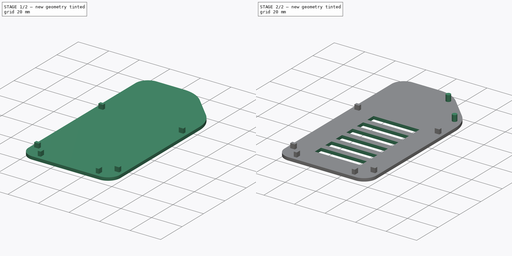
[diagram: build sequence overview — one tinted view per stage of 2, left to right]
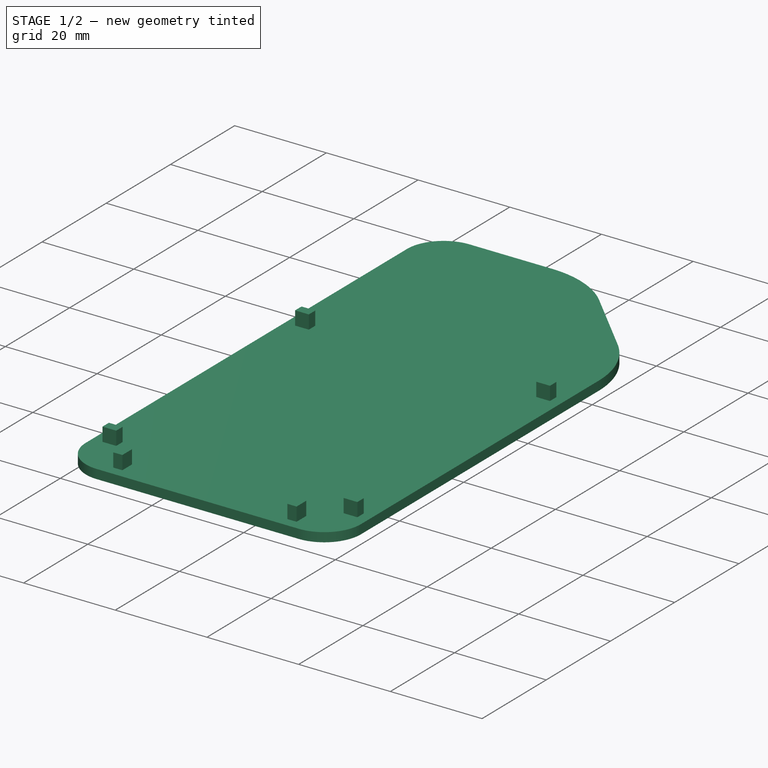
[diagram: stage 1 of 2 — iso view after this stage's code; geometry added in this stage tinted green]
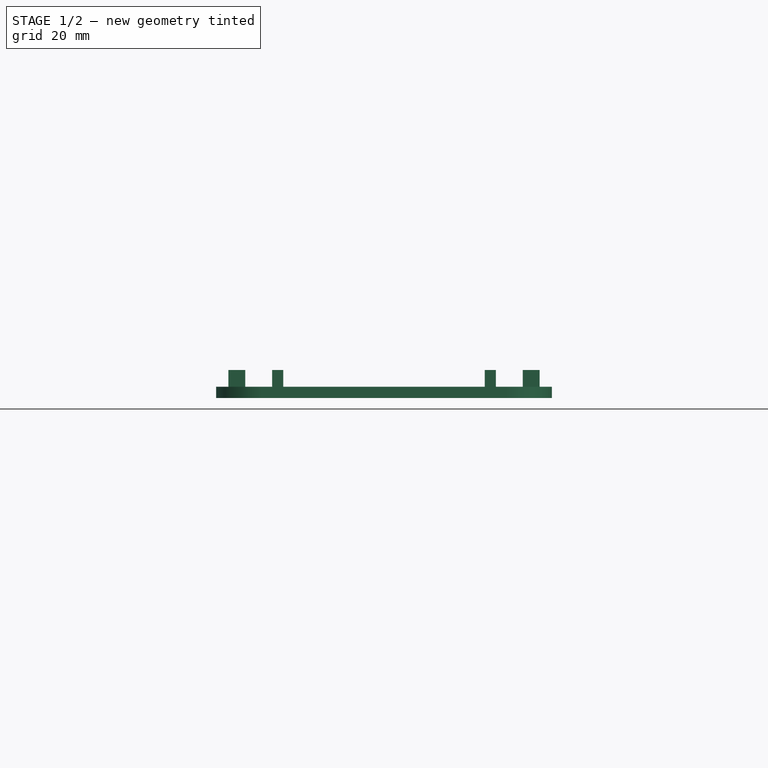
[diagram: stage 1 of 2 — front view after this stage's code; geometry added in this stage tinted green]
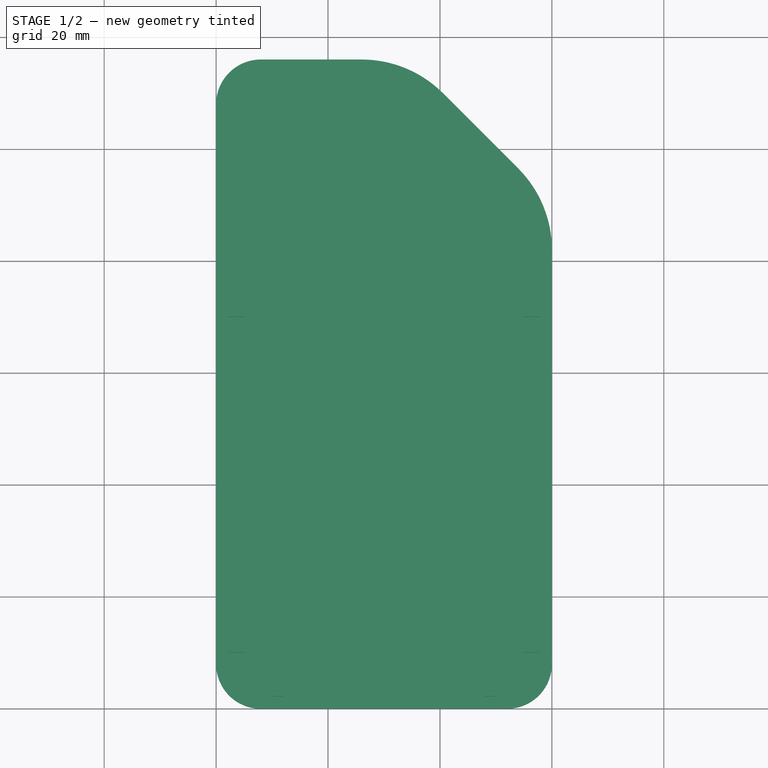
[diagram: stage 1 of 2 — top view after this stage's code; geometry added in this stage tinted green]
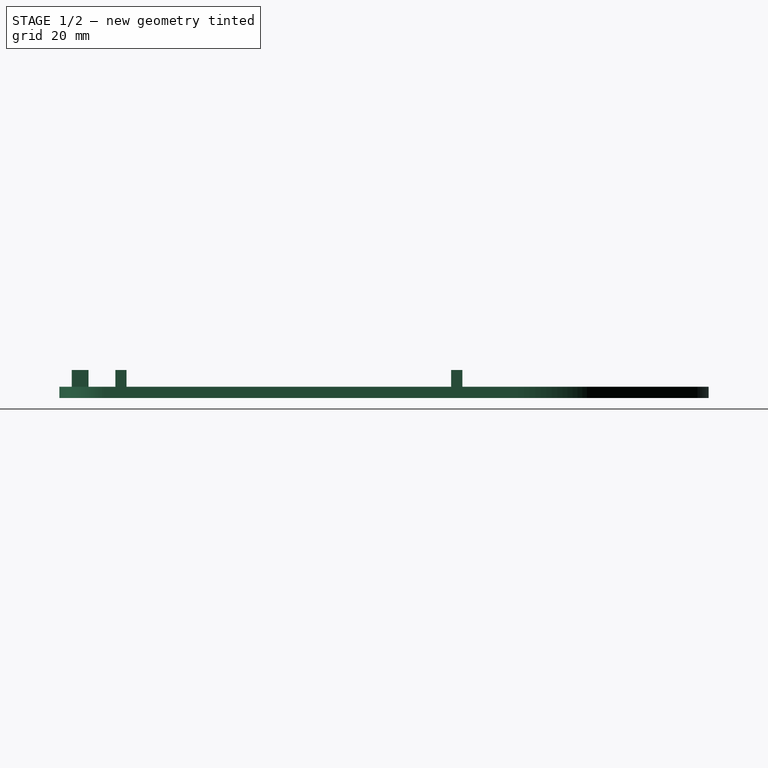
[diagram: stage 1 of 2 — right view after this stage's code; geometry added in this stage tinted green]
FCSTD DOCUMENT
Label: Lid
objects: Sketcher::SketchObject×5, PartDesign::Pad×3, PartDesign::Pocket×1
note: 12 computed .brp shape members not serialized (recipe doc carries the construction recipe); baked Part::Feature solids carry a one-line shape summary decoded from their .brp

FEATURE [Sketcher::SketchObject] Sketch
  sketch-geometry (10):
    g0: LineSegment StartX=60 StartY=8 StartZ=0 EndX=60 EndY=82 EndZ=0
    g1: LineSegment StartX=0 StartY=108 StartZ=0 EndX=0 EndY=8 EndZ=0
    g2: LineSegment StartX=8 StartY=116 StartZ=0 EndX=26 EndY=116 EndZ=0
    g3: LineSegment StartX=8 StartY=0 StartZ=0 EndX=52 EndY=0 EndZ=0
    g4: ArcOfCircle CenterX=8 CenterY=108 CenterZ=0 NormalX=0 NormalY=0 NormalZ=1 Radius=8 StartAngle=1.5708 EndAngle=3.14159
    g5: ArcOfCircle CenterX=52 CenterY=8 CenterZ=0 NormalX=0 NormalY=0 NormalZ=1 Radius=8 StartAngle=4.71239 EndAngle=6.28319
    g6: ArcOfCircle CenterX=8 CenterY=8 CenterZ=0 NormalX=0 NormalY=0 NormalZ=1 Radius=8 StartAngle=3.14159 EndAngle=4.71239
    g7: LineSegment StartX=40.5416 StartY=109.977 StartZ=0 EndX=53.9767 EndY=96.5416 EndZ=0
    g8: ArcOfCircle CenterX=26 CenterY=95.435 CenterZ=0 NormalX=0 NormalY=0 NormalZ=1 Radius=20.565 StartAngle=0.785399 EndAngle=1.5708
    g9: ArcOfCircle CenterX=39.435 CenterY=82 CenterZ=0 NormalX=0 NormalY=0 NormalZ=1 Radius=20.565 StartAngle=6.28319 EndAngle=7.06858
  constraints (34):
    c: Vertical(g0)
    c: Vertical(g1)
    c: Horizontal(g2)
    c: Horizontal(g3)
    c: Coincident(g6,g1)
    c: Coincident(g3,g6)
    c: Coincident(g3,g5)
    c: Coincident(g5,g0)
    c: Coincident(g2,g4)
    c: Coincident(g1,g4)
    c: Radius(g4) = 8
    c: Equal(g5,g6)
    c: Tangent(g4,g2)
    c: Tangent(g5,g3)
    c: DistanceX(g1,g0) = 60
    c: DistanceX(g1) = 0
    c: Tangent(g1,g4)
    c: Tangent(g3,g6)
    c: Tangent(g6,g1)
    c: DistanceY(g3) = 0
    c: Angle(g7) = -0.785398
    c: Coincident(g7,g8)
    c: Coincident(g8,g2)
    c: Tangent(g8,g2)
    c: Tangent(g7,g8)
    c: Coincident(g9,g7)
    c: Tangent(g9,g7)
    c: Coincident(g9,g0)
    c: Distance(g7) = 19
    c: Distance(g2) = 18
    c: Equal(g9,g8)
    c: Equal(g4,g6)
    c: Tangent(g0,g9)
    c: Tangent(g5,g0)
FEATURE [PartDesign::Pad] Pad
  Length = 2
  MirroredExtent = false
  Sketch = -> Sketch
FEATURE [Sketcher::SketchObject] Sketch001
  Placement = pos=(0,0,2) rot=(0,0,1;0rad)
  Support = -> Pad [Face12]
  sketch-geometry (10):
    g0: ArcOfCircle CenterX=8 CenterY=108 CenterZ=0 NormalX=0 NormalY=0 NormalZ=1 Radius=6 StartAngle=1.57079 EndAngle=3.14159
    g1: ArcOfCircle CenterX=26 CenterY=95.435 CenterZ=0 NormalX=0 NormalY=0 NormalZ=1 Radius=18.565 StartAngle=0.785398 EndAngle=1.5708
    g2: ArcOfCircle CenterX=39.435 CenterY=82 CenterZ=0 NormalX=0 NormalY=0 NormalZ=1 Radius=18.565 StartAngle=6.28319 EndAngle=7.06858
    g3: ArcOfCircle CenterX=52 CenterY=8 CenterZ=0 NormalX=0 NormalY=0 NormalZ=1 Radius=6 StartAngle=4.71239 EndAngle=6.28319
    g4: ArcOfCircle CenterX=8 CenterY=8 CenterZ=0 NormalX=0 NormalY=0 NormalZ=1 Radius=6 StartAngle=3.14159 EndAngle=4.71239
    g5: LineSegment StartX=8.00001 StartY=114 StartZ=0 EndX=26 EndY=114 EndZ=0
    g6: LineSegment StartX=2 StartY=108 StartZ=0 EndX=2 EndY=8 EndZ=0
    g7: LineSegment StartX=39.1274 StartY=108.562 StartZ=0 EndX=52.5624 EndY=95.1274 EndZ=0
    g8: LineSegment StartX=58 StartY=82 StartZ=0 EndX=58 EndY=8 EndZ=0
    g9: LineSegment StartX=8 StartY=2 StartZ=0 EndX=52 EndY=2 EndZ=0
  constraints (35):
    c: Horizontal(g5)
    c: Tangent(g5,g1)
    c: Coincident(g1,g5)
    c: Coincident(g0,g5)
    c: Vertical(g6)
    c: Tangent(g6,g0)
    c: Coincident(g4,g6)
    c: Coincident(g0,g6)
    c: Coincident(g2,g7)
    c: Coincident(g1,g7)
    c: Vertical(g8)
    c: Coincident(g3,g8)
    c: Coincident(g2,g8)
    c: Horizontal(g9)
    c: Coincident(g9,g3)
    c: Coincident(g9,g4)
    c: Radius(g0) = 6
    c: Equal(g0,g4)
    c: Tangent(g7,g1)
    c: Tangent(g2,g8)
    c: DistanceY(g2,g3) = -80
    c: Equal(g3,g4)
    c: Distance(g7) = 19
    c: Distance(g5) = 18
    c: DistanceX(g4) = 8
    c: DistanceY(g4) = 8
    c: Tangent(g2,g7)
    c: Tangent(g4,g6)
    c: Tangent(g4,g9)
    c: Tangent(g5,g0)
    c: Tangent(g3,g8)
    c: Tangent(g3,g9)
    c: DistanceX(g4,g3) = 44
    c: DistanceY(g6) = -100
    c: Radius(g2) = 18.565
FEATURE [Sketcher::SketchObject] Sketch002
  Placement = pos=(0,0,2) rot=(0,0,1;0rad)
  Support = -> Pad [Face12]
  sketch-geometry (24):
    g0: LineSegment StartX=10 StartY=5.2 StartZ=0 EndX=12 EndY=5.2 EndZ=0
    g1: LineSegment StartX=12 StartY=5.2 StartZ=0 EndX=12 EndY=2.2 EndZ=0
    g2: LineSegment StartX=12 StartY=2.2 StartZ=0 EndX=10 EndY=2.2 EndZ=0
    g3: LineSegment StartX=10 StartY=2.2 StartZ=0 EndX=10 EndY=5.2 EndZ=0
    g4: LineSegment StartX=2.2 StartY=10 StartZ=0 EndX=5.2 EndY=10 EndZ=0
    g5: LineSegment StartX=5.2 StartY=10 StartZ=0 EndX=5.2 EndY=12 EndZ=0
    g6: LineSegment StartX=5.2 StartY=12 StartZ=0 EndX=2.2 EndY=12 EndZ=0
    g7: LineSegment StartX=2.2 StartY=12 StartZ=0 EndX=2.2 EndY=10 EndZ=0
    g8: LineSegment StartX=50 StartY=2.2 StartZ=0 EndX=48 EndY=2.2 EndZ=0
    g9: LineSegment StartX=48 StartY=2.2 StartZ=0 EndX=48 EndY=5.2 EndZ=0
    g10: LineSegment StartX=48 StartY=5.2 StartZ=0 EndX=50 EndY=5.2 EndZ=0
    g11: LineSegment StartX=50 StartY=5.2 StartZ=0 EndX=50 EndY=2.2 EndZ=0
    g12: LineSegment StartX=57.8 StartY=12 StartZ=0 EndX=54.8 EndY=12 EndZ=0
    g13: LineSegment StartX=54.8 StartY=12 StartZ=0 EndX=54.8 EndY=10 EndZ=0
    g14: LineSegment StartX=54.8 StartY=10 StartZ=0 EndX=57.8 EndY=10 EndZ=0
    g15: LineSegment StartX=57.8 StartY=10 StartZ=0 EndX=57.8 EndY=12 EndZ=0
    g16: LineSegment StartX=57.8 StartY=72 StartZ=0 EndX=54.8 EndY=72 EndZ=0
    g17: LineSegment StartX=54.8 StartY=72 StartZ=0 EndX=54.8 EndY=70 EndZ=0
    g18: LineSegment StartX=54.8 StartY=70 StartZ=0 EndX=57.8 EndY=70 EndZ=0
    g19: LineSegment StartX=57.8 StartY=70 StartZ=0 EndX=57.8 EndY=72 EndZ=0
    g20: LineSegment StartX=2.2 StartY=72 StartZ=0 EndX=5.2 EndY=72 EndZ=0
    g21: LineSegment StartX=5.2 StartY=72 StartZ=0 EndX=5.2 EndY=70 EndZ=0
    g22: LineSegment StartX=5.2 StartY=70 StartZ=0 EndX=2.2 EndY=70 EndZ=0
    g23: LineSegment StartX=2.2 StartY=70 StartZ=0 EndX=2.2 EndY=72 EndZ=0
  constraints (72):
    c: Coincident(g0,g1)
    c: Coincident(g1,g2)
    c: Coincident(g2,g3)
    c: Coincident(g3,g0)
    c: Horizontal(g0)
    c: Horizontal(g2)
    c: Vertical(g1)
    c: Vertical(g3)
    c: Coincident(g4,g5)
    c: Coincident(g5,g6)
    c: Coincident(g6,g7)
    c: Coincident(g7,g4)
    c: Horizontal(g4)
    c: Horizontal(g6)
    c: Vertical(g5)
    c: Vertical(g7)
    c: Coincident(g8,g9)
    c: Coincident(g9,g10)
    c: Coincident(g10,g11)
    c: Coincident(g11,g8)
    c: Horizontal(g8)
    c: Horizontal(g10)
    c: Vertical(g9)
    c: Vertical(g11)
    c: Coincident(g12,g13)
    c: Coincident(g13,g14)
    c: Coincident(g14,g15)
    c: Coincident(g15,g12)
    c: Horizontal(g12)
    c: Horizontal(g14)
    c: Vertical(g13)
    c: Vertical(g15)
    c: Equal(g4,g1)
    c: Equal(g1,g9)
    c: Equal(g9,g14)
    c: DistanceX(g6) = -3
    c: DistanceY(g5) = 2
    c: Equal(g0,g10)
    c: Equal(g10,g13)
    c: Equal(g13,g5)
    c: DistanceX(g4) = 2.2
    c: DistanceY(g4) = 10
    c: DistanceX(g14) = 57.8
    c: DistanceY(g14) = 10
    c: DistanceX(g2) = 10
    c: DistanceY(g2) = 2.2
    c: DistanceX(g8) = 50
    c: DistanceY(g8) = 2.2
    c: Coincident(g16,g17)
    c: Coincident(g17,g18)
    c: Coincident(g18,g19)
    c: Coincident(g19,g16)
    c: Horizontal(g16)
    c: Horizontal(g18)
    c: Vertical(g17)
    c: Vertical(g19)
    c: Coincident(g20,g21)
    c: Coincident(g21,g22)
    c: Coincident(g22,g23)
    c: Coincident(g23,g20)
    c: Horizontal(g20)
    c: Horizontal(g22)
    c: Vertical(g21)
    c: Vertical(g23)
    c: Equal(g22,g18)
    c: Equal(g18,g6)
    c: Equal(g17,g21)
    c: Equal(g21,g5)
    c: DistanceX(g22) = 2.2
    c: DistanceY(g22) = 70
    c: DistanceX(g18) = 57.8
    c: DistanceY(g18) = 70
FEATURE [PartDesign::Pad] Pad001
  Length = 3
  MirroredExtent = false
  Sketch = -> Sketch002
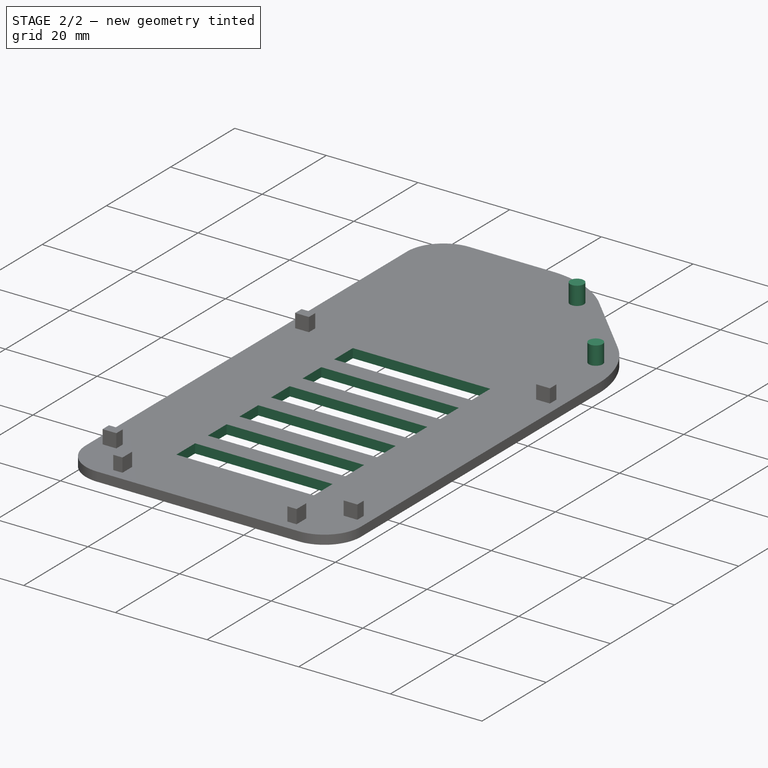
[diagram: stage 2 of 2 — iso view after this stage's code; geometry added in this stage tinted green]
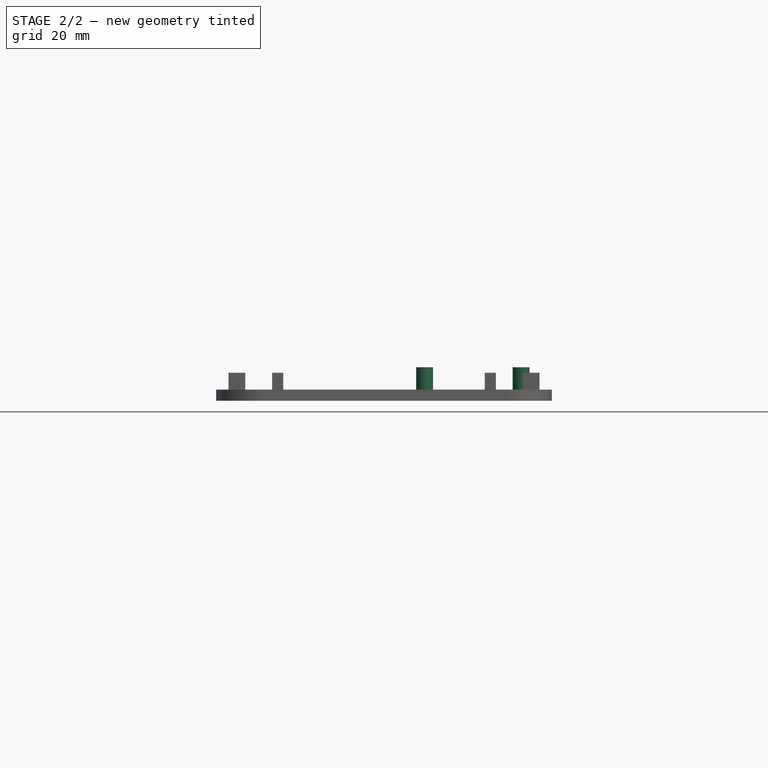
[diagram: stage 2 of 2 — front view after this stage's code; geometry added in this stage tinted green]
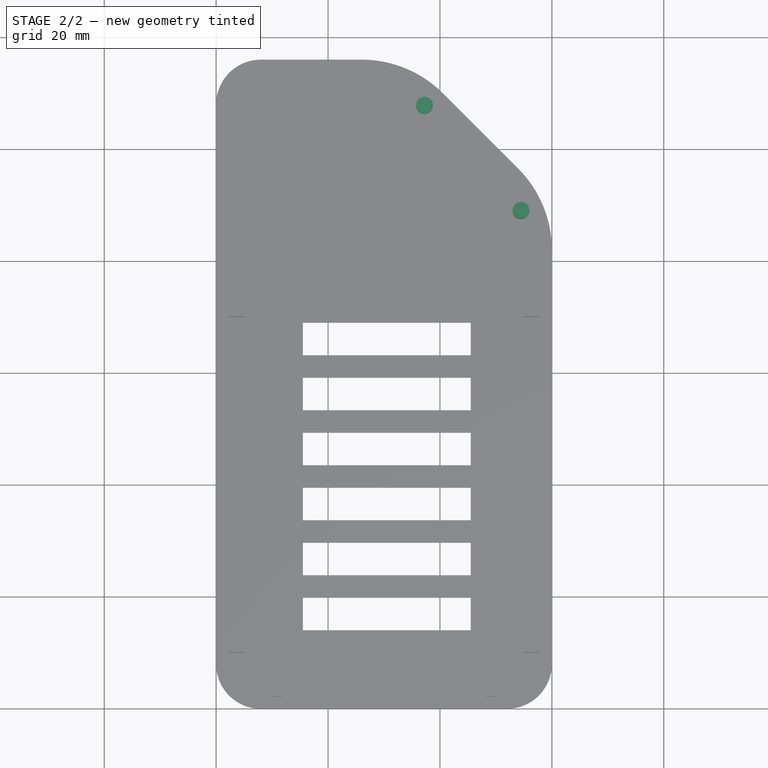
[diagram: stage 2 of 2 — top view after this stage's code; geometry added in this stage tinted green]
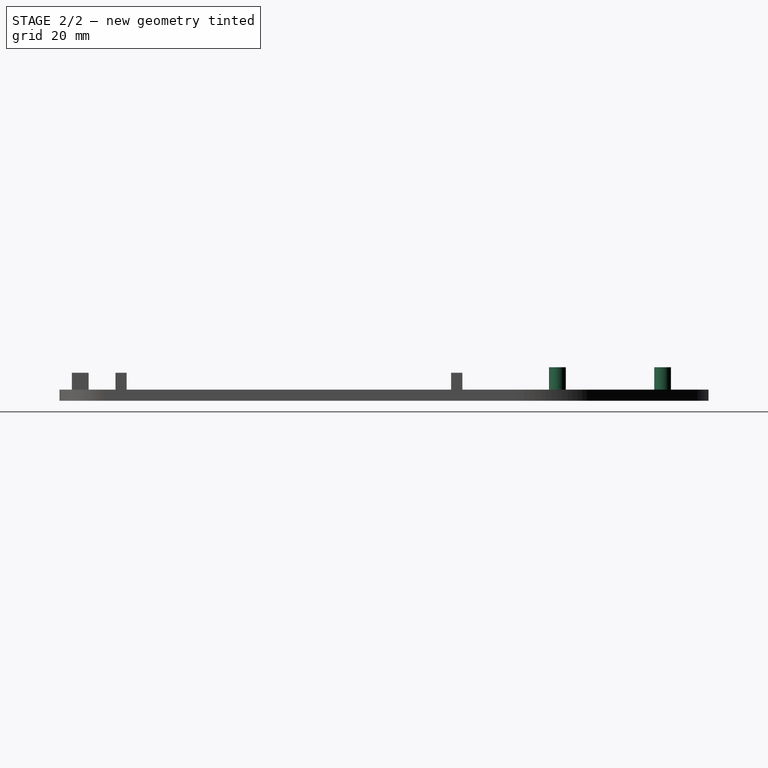
[diagram: stage 2 of 2 — right view after this stage's code; geometry added in this stage tinted green]
FEATURE [Sketcher::SketchObject] Sketch003
  Placement = pos=(0,0,2) rot=(0,0,1;0rad)
  Support = -> Pad001 [Face5]
  sketch-geometry (29):
    g0: LineSegment StartX=15.5 StartY=69 StartZ=0 EndX=45.5 EndY=69 EndZ=0
    g1: LineSegment StartX=45.5 StartY=69 StartZ=0 EndX=45.5 EndY=63.1667 EndZ=0
    g2: LineSegment StartX=45.5 StartY=63.1667 StartZ=0 EndX=15.5 EndY=63.1667 EndZ=0
    g3: LineSegment StartX=15.5 StartY=63.1667 StartZ=0 EndX=15.5 EndY=69 EndZ=0
    g4: LineSegment StartX=15.5 StartY=59.1667 StartZ=0 EndX=45.5 EndY=59.1667 EndZ=0
    g5: LineSegment StartX=45.5 StartY=59.1667 StartZ=0 EndX=45.5 EndY=53.3333 EndZ=0
    g6: LineSegment StartX=45.5 StartY=53.3333 StartZ=0 EndX=15.5 EndY=53.3333 EndZ=0
    g7: LineSegment StartX=15.5 StartY=53.3333 StartZ=0 EndX=15.5 EndY=59.1667 EndZ=0
    g8: LineSegment StartX=15.5 StartY=49.3333 StartZ=0 EndX=45.5 EndY=49.3333 EndZ=0
    g9: LineSegment StartX=45.5 StartY=49.3333 StartZ=0 EndX=45.5 EndY=43.5 EndZ=0
    g10: LineSegment StartX=45.5 StartY=43.5 StartZ=0 EndX=15.5 EndY=43.5 EndZ=0
    g11: LineSegment StartX=15.5 StartY=43.5 StartZ=0 EndX=15.5 EndY=49.3333 EndZ=0
    g12: LineSegment StartX=15.5 StartY=39.5 StartZ=0 EndX=45.5 EndY=39.5 EndZ=0
    g13: LineSegment StartX=45.5 StartY=39.5 StartZ=0 EndX=45.5 EndY=33.6667 EndZ=0
    g14: LineSegment StartX=45.5 StartY=33.6667 StartZ=0 EndX=15.5 EndY=33.6667 EndZ=0
    g15: LineSegment StartX=15.5 StartY=33.6667 StartZ=0 EndX=15.5 EndY=39.5 EndZ=0
    g16: LineSegment StartX=15.5 StartY=29.6667 StartZ=0 EndX=45.5 EndY=29.6667 EndZ=0
    g17: LineSegment StartX=45.5 StartY=29.6667 StartZ=0 EndX=45.5 EndY=23.8333 EndZ=0
    g18: LineSegment StartX=45.5 StartY=23.8333 StartZ=0 EndX=15.5 EndY=23.8333 EndZ=0
    g19: LineSegment StartX=15.5 StartY=23.8333 StartZ=0 EndX=15.5 EndY=29.6667 EndZ=0
    g20: LineSegment StartX=15.5 StartY=19.8333 StartZ=0 EndX=45.5 EndY=19.8333 EndZ=0
    g21: LineSegment StartX=45.5 StartY=19.8333 StartZ=0 EndX=45.5 EndY=14 EndZ=0
    g22: LineSegment StartX=45.5 StartY=14 StartZ=0 EndX=15.5 EndY=14 EndZ=0
    g23: LineSegment StartX=15.5 StartY=14 StartZ=0 EndX=15.5 EndY=19.8333 EndZ=0
    g24: LineSegment [constr] StartX=45.5 StartY=63.1667 StartZ=0 EndX=45.5 EndY=59.1667 EndZ=0
    g25: LineSegment [constr] StartX=45.5 StartY=53.3333 StartZ=0 EndX=45.5 EndY=49.3333 EndZ=0
    g26: LineSegment [constr] StartX=45.5 StartY=43.5 StartZ=0 EndX=45.5 EndY=39.5 EndZ=0
    g27: LineSegment [constr] StartX=45.5 StartY=33.6667 StartZ=0 EndX=45.5 EndY=29.6667 EndZ=0
    g28: LineSegment [constr] StartX=45.5 StartY=23.8333 StartZ=0 EndX=45.5 EndY=19.8333 EndZ=0
  constraints (82):
    c: Coincident(g0,g1)
    c: Coincident(g1,g2)
    c: Coincident(g2,g3)
    c: Coincident(g3,g0)
    c: Horizontal(g0)
    c: Horizontal(g2)
    c: Vertical(g1)
    c: Vertical(g3)
    c: Coincident(g4,g5)
    c: Coincident(g5,g6)
    c: Coincident(g6,g7)
    c: Coincident(g7,g4)
    c: Horizontal(g4)
    c: Horizontal(g6)
    c: Vertical(g5)
    c: Vertical(g7)
    c: Coincident(g8,g9)
    c: Coincident(g9,g10)
    c: Coincident(g10,g11)
    c: Coincident(g11,g8)
    c: Horizontal(g8)
    c: Horizontal(g10)
    c: Vertical(g9)
    c: Vertical(g11)
    c: Coincident(g12,g13)
    c: Coincident(g13,g14)
    c: Coincident(g14,g15)
    c: Coincident(g15,g12)
    c: Horizontal(g12)
    c: Horizontal(g14)
    c: Vertical(g13)
    c: Vertical(g15)
    c: Coincident(g16,g17)
    c: Coincident(g17,g18)
    c: Coincident(g18,g19)
    c: Coincident(g19,g16)
    c: Horizontal(g16)
    c: Horizontal(g18)
    c: Vertical(g17)
    c: Vertical(g19)
    c: Coincident(g20,g21)
    c: Coincident(g21,g22)
    c: Coincident(g22,g23)
    c: Coincident(g23,g20)
    c: Horizontal(g20)
    c: Horizontal(g22)
    c: Vertical(g21)
    c: Vertical(g23)
    c: Equal(g3,g7)
    c: Equal(g7,g11)
    c: Equal(g11,g15)
    c: Equal(g15,g19)
    c: Equal(g19,g23)
    c: Vertical(g24)
    c: Vertical(g25)
    c: Vertical(g26)
    c: Vertical(g27)
    c: Vertical(g28)
    c: Coincident(g24,g1)
    c: Coincident(g24,g4)
    c: Coincident(g25,g5)
    c: Coincident(g8,g25)
    c: Coincident(g26,g9)
    c: Coincident(g12,g26)
    c: Coincident(g27,g13)
    c: Coincident(g27,g16)
    c: Coincident(g17,g28)
    c: Coincident(g28,g20)
    c: Equal(g24,g25)
    c: Equal(g25,g26)
    c: Equal(g26,g27)
    c: Equal(g27,g28)
    c: Equal(g20,g16)
    c: Equal(g16,g12)
    c: Equal(g12,g8)
    c: Equal(g8,g4)
    c: Equal(g4,g0)
    c: DistanceX(g0) = 30
    c: DistanceY(g0,g21) = -55
    c: DistanceY(g24) = -4
    c: DistanceX(g22) = 15.5
    c: DistanceY(g22) = 14
FEATURE [PartDesign::Pocket] Pocket
  Length = 5
  Sketch = -> Sketch003
  Type = 0
FEATURE [Sketcher::SketchObject] Sketch004
  Placement = pos=(0,0,2) rot=(0,0,1;0rad)
  Support = -> Pocket [Face5]
  sketch-geometry (2):
    g0: Circle CenterX=37.2478 CenterY=107.8 CenterZ=0 NormalX=0 NormalY=0 NormalZ=1 Radius=1.5
    g1: Circle CenterX=54.5 CenterY=89 CenterZ=0 NormalX=0 NormalY=0 NormalZ=1 Radius=1.5
  constraints (6):
    c: Equal(g0,g1)
    c: Radius(g0) = 1.5
    c: DistanceX(g0) = 37.2478
    c: DistanceY(g0) = 107.8
    c: DistanceX(g1) = 54.5
    c: DistanceY(g1) = 89
FEATURE [PartDesign::Pad] Pad002
  Length = 4
  MirroredExtent = false
  Sketch = -> Sketch004
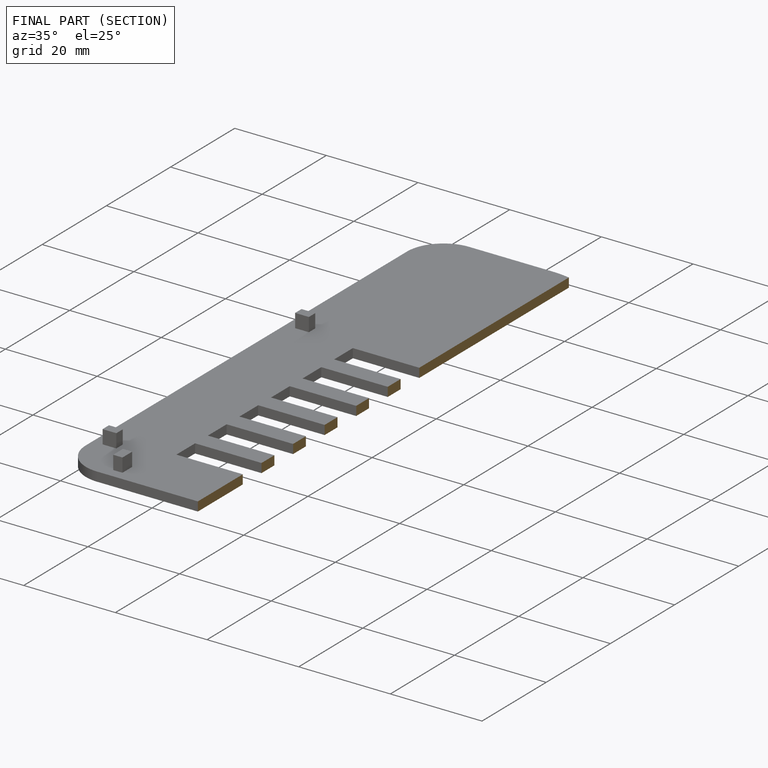
[diagram: finished part — half-section view (interior)]
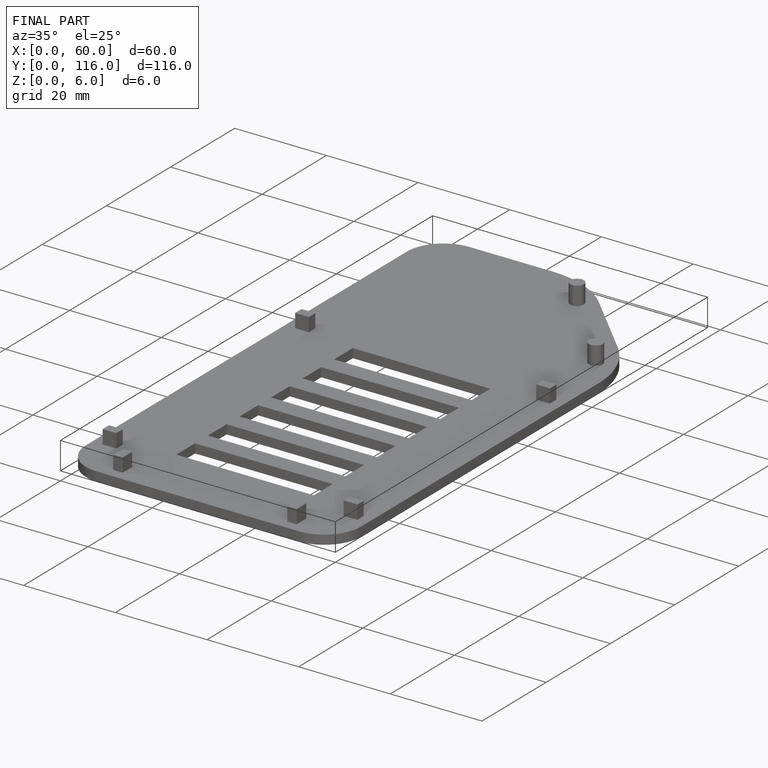
[diagram: finished part — iso view with bounding-box wireframe]
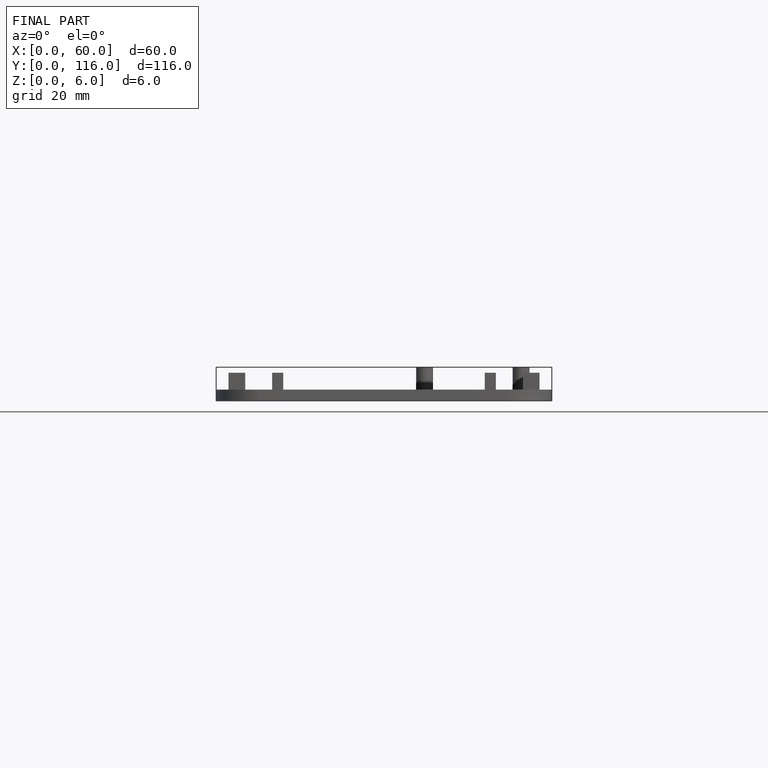
[diagram: finished part — front view with bounding-box wireframe]
